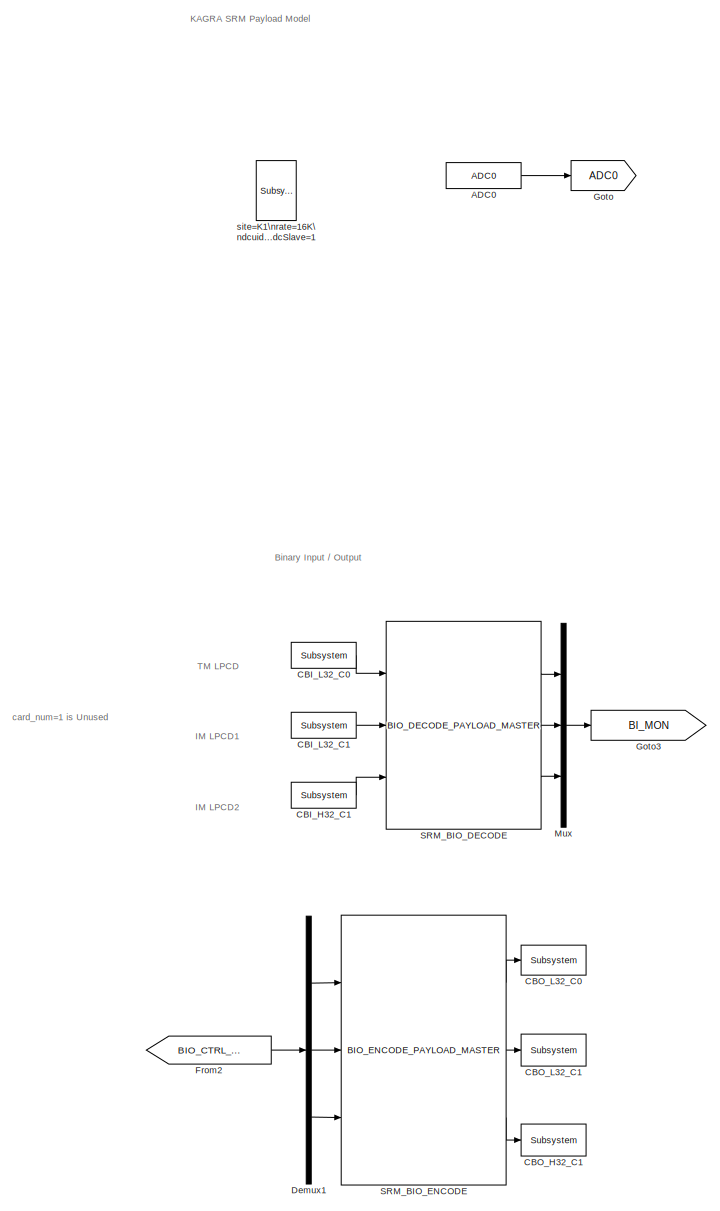
[diagram: root canvas - part 1/4, middle left region]
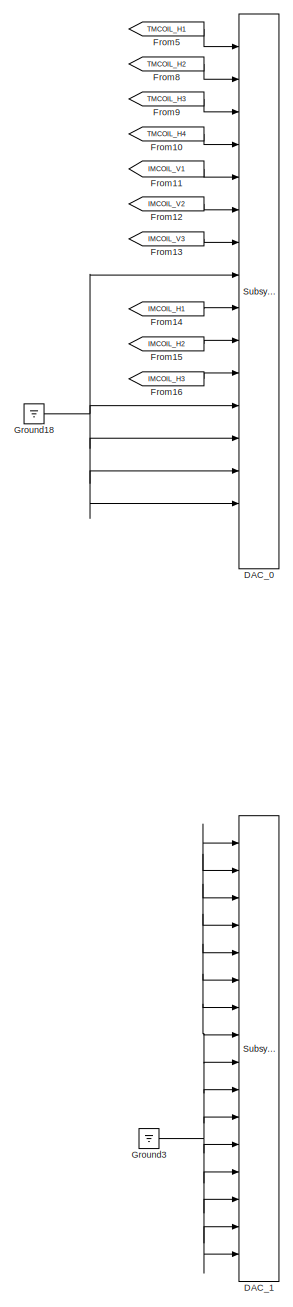
[diagram: root canvas - part 2/4, right side, full height]
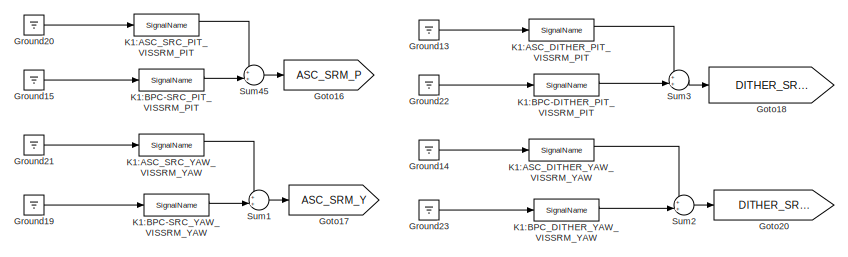
[diagram: root canvas - part 3/4, top center region]
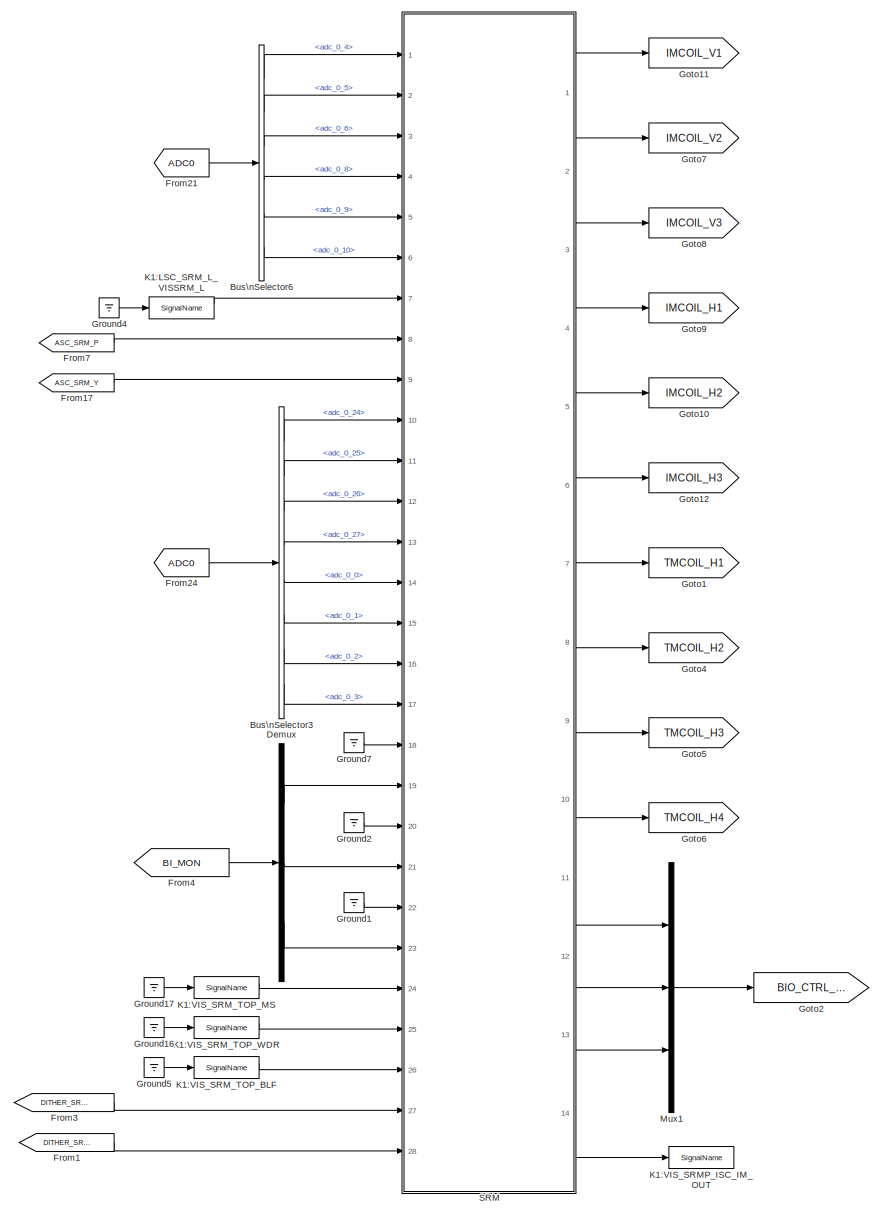
[diagram: root canvas - part 4/4, central region]
MODEL k1vissrmp
KIND model
BLOCK [Reference] ADC0  REF=cdsAdcx0/ADC0
  AttributesFormatString = %<Description>\\n%<Tag>
  Description = type-GSC_16AI64SSA\ncard_num=0
  Ports = [0, 1]
  SID = 271
  SourceBlock = cdsAdcx0/ADC0
  SourceType = SubSystem
  Tag = cdsAdc
BLOCK [BusSelector] Bus\nSelector3
  AttributesFormatString = %<Description>
  Description = ADC Selector
  OutputSignals = adc_0_24,adc_0_25,adc_0_26,adc_0_27,adc_0_0,adc_0_1,adc_0_2,adc_0_3
  Ports = [1, 8]
  SID = 275
BLOCK [BusSelector] Bus\nSelector6
  AttributesFormatString = %<Description>
  Description = ADC Selector
  OutputSignals = adc_0_4,adc_0_5,adc_0_6,adc_0_8,adc_0_9,adc_0_10
  Ports = [1, 6]
  SID = 273
BLOCK [Reference] CBI_H32_C1  REF=cdsCDI64/Subsystem
  AttributesFormatString = %<Tag>\\n%<Description>
  Description = card_num=3
  Ports = [0, 1]
  SID = 2214
  SourceBlock = cdsCDI64/Subsystem
  SourceType = SubSystem
  Tag = cdsCDI64
BLOCK [Reference] CBI_L32_C0  REF=cdsCDI64/Subsystem
  AttributesFormatString = %<Tag>\\n%<Description>
  Description = card_num=0
  Ports = [0, 1]
  SID = 2215
  SourceBlock = cdsCDI64/Subsystem
  SourceType = SubSystem
  Tag = cdsCDI64
BLOCK [Reference] CBI_L32_C1  REF=cdsCDI64/Subsystem
  AttributesFormatString = %<Tag>\\n%<Description>
  Description = card_num=2
  Ports = [0, 1]
  SID = 2216
  SourceBlock = cdsCDI64/Subsystem
  SourceType = SubSystem
  Tag = cdsCDI64
BLOCK [Reference] CBO_H32_C1  REF=cdsCDO64/Subsystem
  AttributesFormatString = %<Tag>\\n%<Description>
  Description = card_num=3
  Ports = [1]
  SID = 2217
  SourceBlock = cdsCDO64/Subsystem
  SourceType = SubSystem
  Tag = cdsCDO64
BLOCK [Reference] CBO_L32_C0  REF=cdsCDO64/Subsystem
  AttributesFormatString = %<Tag>\\n%<Description>
  Description = card_num=0
  Ports = [1]
  SID = 2218
  SourceBlock = cdsCDO64/Subsystem
  SourceType = SubSystem
  Tag = cdsCDO64
BLOCK [Reference] CBO_L32_C1  REF=cdsCDO64/Subsystem
  AttributesFormatString = %<Tag>\\n%<Description>
  Description = card_num=2
  Ports = [1]
  SID = 2219
  SourceBlock = cdsCDO64/Subsystem
  SourceType = SubSystem
  Tag = cdsCDO64
BLOCK [Reference] DAC_0  REF=dac/Subsystem  (lib defined in slx_40ef132df75b, slx_b7657ccccc5b, +4 more)
  AttributesFormatString = %<Description>
  Description = type=GSC_16AO16,\ncard_num=0
  Ports = [16]
  SID = 350
  SourceBlock = dac/Subsystem
  SourceType = SubSystem
BLOCK [Reference] DAC_1  REF=dac/Subsystem  (lib defined in slx_40ef132df75b, slx_b7657ccccc5b, +4 more)
  AttributesFormatString = %<Description>
  Description = type=GSC_16AO16,\ncard_num=1
  Ports = [16]
  SID = 536
  SourceBlock = dac/Subsystem
  SourceType = SubSystem
BLOCK [Demux] Demux
  DisplayOption = bar
  Outputs = 3
  Ports = [1, 3]
  SID = 2148
BLOCK [Demux] Demux1
  DisplayOption = bar
  Outputs = 3
  Ports = [1, 3]
  SID = 2220
BLOCK [From] From1
  GotoTag = DITHER_SRM_Y
  SID = 2282
BLOCK [From] From10
  GotoTag = TMCOIL_H4
  SID = 351
BLOCK [From] From11
  GotoTag = IMCOIL_V1
  SID = 352
BLOCK [From] From12
  GotoTag = IMCOIL_V2
  SID = 353
BLOCK [From] From13
  GotoTag = IMCOIL_V3
  SID = 354
BLOCK [From] From14
  GotoTag = IMCOIL_H1
  SID = 355
BLOCK [From] From15
  GotoTag = IMCOIL_H2
  SID = 356
BLOCK [From] From16
  GotoTag = IMCOIL_H3
  SID = 357
BLOCK [From] From17
  GotoTag = ASC_SRM_Y
  SID = 2280
BLOCK [From] From2
  GotoTag = BIO_CTRL_OUT
  SID = 2221
BLOCK [From] From21
  GotoTag = ADC0
  SID = 1851
BLOCK [From] From24
  GotoTag = ADC0
  SID = 1853
BLOCK [From] From3
  GotoTag = DITHER_SRM_P
  SID = 2283
BLOCK [From] From4
  GotoTag = BI_MON
  SID = 2149
BLOCK [From] From5
  GotoTag = TMCOIL_H1
  SID = 359
BLOCK [From] From7
  GotoTag = ASC_SRM_P
  SID = 2281
BLOCK [From] From8
  GotoTag = TMCOIL_H2
  SID = 360
BLOCK [From] From9
  GotoTag = TMCOIL_H3
  SID = 361
BLOCK [Goto] Goto
  GotoTag = ADC0
  SID = 272
BLOCK [Goto] Goto1
  GotoTag = TMCOIL_H1
  SID = 364
BLOCK [Goto] Goto10
  GotoTag = IMCOIL_H2
  SID = 368
BLOCK [Goto] Goto11
  GotoTag = IMCOIL_V1
  SID = 369
BLOCK [Goto] Goto12
  GotoTag = IMCOIL_H3
  SID = 370
BLOCK [Goto] Goto16
  GotoTag = ASC_SRM_P
  SID = 2256
BLOCK [Goto] Goto17
  GotoTag = ASC_SRM_Y
  SID = 2257
BLOCK [Goto] Goto18
  GotoTag = DITHER_SRM_P
  SID = 2258
BLOCK [Goto] Goto2
  GotoTag = BIO_CTRL_OUT
  SID = 2146
BLOCK [Goto] Goto20
  GotoTag = DITHER_SRM_Y
  SID = 2259
BLOCK [Goto] Goto3
  GotoTag = BI_MON
  SID = 2222
BLOCK [Goto] Goto4
  GotoTag = TMCOIL_H2
  SID = 365
BLOCK [Goto] Goto5
  GotoTag = TMCOIL_H3
  SID = 366
BLOCK [Goto] Goto6
  GotoTag = TMCOIL_H4
  SID = 367
BLOCK [Goto] Goto7
  GotoTag = IMCOIL_V2
  SID = 371
BLOCK [Goto] Goto8
  GotoTag = IMCOIL_V3
  SID = 372
BLOCK [Goto] Goto9
  GotoTag = IMCOIL_H1
  SID = 373
BLOCK [Ground] Ground1
  SID = 2152
BLOCK [Ground] Ground13
  SID = 2260
BLOCK [Ground] Ground14
  SID = 2261
BLOCK [Ground] Ground15
  SID = 2262
BLOCK [Ground] Ground16
  SID = 2210
BLOCK [Ground] Ground17
  SID = 2211
BLOCK [Ground] Ground18
  SID = 362
BLOCK [Ground] Ground19
  SID = 2263
BLOCK [Ground] Ground2
  SID = 2153
BLOCK [Ground] Ground20
  SID = 2266
BLOCK [Ground] Ground21
  SID = 2267
BLOCK [Ground] Ground22
  SID = 2264
BLOCK [Ground] Ground23
  SID = 2265
BLOCK [Ground] Ground3
  SID = 537
BLOCK [Ground] Ground4
  SID = 2204
BLOCK [Ground] Ground5
  SID = 2231
BLOCK [Ground] Ground7
  SID = 2151
BLOCK [Reference] K1:ASC_DITHER_PIT_VISSRM_PIT  REF=cdsIPCx/SignalName
  AttributesFormatString = %<Tag>
  Description = Inter-Process Communication via PCI Express network.
  Ports = [1, 2]
  SID = 2254
  SourceBlock = cdsIPCx/SignalName
  SourceType = SubSystem
  Tag = cdsIPCx_PCIE
BLOCK [Reference] K1:ASC_DITHER_YAW_VISSRM_YAW  REF=cdsIPCx/SignalName
  AttributesFormatString = %<Tag>
  Description = Inter-Process Communication via PCI Express network.
  Ports = [1, 2]
  SID = 2255
  SourceBlock = cdsIPCx/SignalName
  SourceType = SubSystem
  Tag = cdsIPCx_PCIE
BLOCK [Reference] K1:ASC_SRC_PIT_VISSRM_PIT  REF=cdsIPCx/SignalName
  AttributesFormatString = %<Tag>
  Description = Inter-Process Communication via PCI Express network.
  Ports = [1, 2]
  SID = 2250
  SourceBlock = cdsIPCx/SignalName
  SourceType = SubSystem
  Tag = cdsIPCx_PCIE
BLOCK [Reference] K1:ASC_SRC_YAW_VISSRM_YAW  REF=cdsIPCx/SignalName
  AttributesFormatString = %<Tag>
  Description = Inter-Process Communication via PCI Express network.
  Ports = [1, 2]
  SID = 2251
  SourceBlock = cdsIPCx/SignalName
  SourceType = SubSystem
  Tag = cdsIPCx_PCIE
BLOCK [Reference] K1:BPC-DITHER_PIT_VISSRM_PIT  REF=cdsIPCx/SignalName
  AttributesFormatString = %<Tag>
  Description = Inter-Process Communication via PCI Express network.
  Ports = [1, 2]
  SID = 2272
  SourceBlock = cdsIPCx/SignalName
  SourceType = SubSystem
  Tag = cdsIPCx_PCIE
BLOCK [Reference] K1:BPC-SRC_PIT_VISSRM_PIT  REF=cdsIPCx/SignalName
  AttributesFormatString = %<Tag>
  Description = Inter-Process Communication via PCI Express network.
  Ports = [1, 2]
  SID = 2273
  SourceBlock = cdsIPCx/SignalName
  SourceType = SubSystem
  Tag = cdsIPCx_PCIE
BLOCK [Reference] K1:BPC-SRC_YAW_VISSRM_YAW  REF=cdsIPCx/SignalName
  AttributesFormatString = %<Tag>
  Description = Inter-Process Communication via PCI Express network.
  Ports = [1, 2]
  SID = 2274
  SourceBlock = cdsIPCx/SignalName
  SourceType = SubSystem
  Tag = cdsIPCx_PCIE
BLOCK [Reference] K1:BPC_DITHER_YAW_VISSRM_YAW  REF=cdsIPCx/SignalName
  AttributesFormatString = %<Tag>
  Description = Inter-Process Communication via PCI Express network.
  Ports = [1, 2]
  SID = 2275
  SourceBlock = cdsIPCx/SignalName
  SourceType = SubSystem
  Tag = cdsIPCx_PCIE
BLOCK [Reference] K1:LSC_SRM_L_VISSRM_L  REF=cdsIPCx/SignalName
  AttributesFormatString = %<Tag>
  Description = Inter-Process Communication via PCI Express network.
  Ports = [1, 2]
  SID = 2233
  SourceBlock = cdsIPCx/SignalName
  SourceType = SubSystem
  Tag = cdsIPCx_PCIE
BLOCK [Reference] K1:VIS_SRMP_ISC_IM_OUT  REF=cdsIPCx/SignalName
  AttributesFormatString = %<Tag>
  Description = Inter-Process Communication via Shared memory.
  Ports = [1, 2]
  SID = 2284
  SourceBlock = cdsIPCx/SignalName
  SourceType = SubSystem
  Tag = cdsIPCx_SHMEM
BLOCK [Reference] K1:VIS_SRM_TOP_BLF  REF=cdsIPCx/SignalName
  AttributesFormatString = %<Tag>
  Description = Inter-Process Communication via Shared memory.
  Ports = [1, 2]
  SID = 2232
  SourceBlock = cdsIPCx/SignalName
  SourceType = SubSystem
  Tag = cdsIPCx_SHMEM
BLOCK [Reference] K1:VIS_SRM_TOP_MS  REF=cdsIPCx/SignalName
  AttributesFormatString = %<Tag>
  Description = Inter-Process Communication via Shared memory.
  Ports = [1, 2]
  SID = 2212
  SourceBlock = cdsIPCx/SignalName
  SourceType = SubSystem
  Tag = cdsIPCx_SHMEM
BLOCK [Reference] K1:VIS_SRM_TOP_WDR  REF=cdsIPCx/SignalName
  AttributesFormatString = %<Tag>
  Description = Inter-Process Communication via Shared memory.
  Ports = [1, 2]
  SID = 2213
  SourceBlock = cdsIPCx/SignalName
  SourceType = SubSystem
  Tag = cdsIPCx_SHMEM
BLOCK [Mux] Mux
  DisplayOption = bar
  Inputs = 3
  Ports = [3, 1]
  SID = 2223
BLOCK [Mux] Mux1
  DisplayOption = bar
  Inputs = 3
  Ports = [3, 1]
  SID = 2147
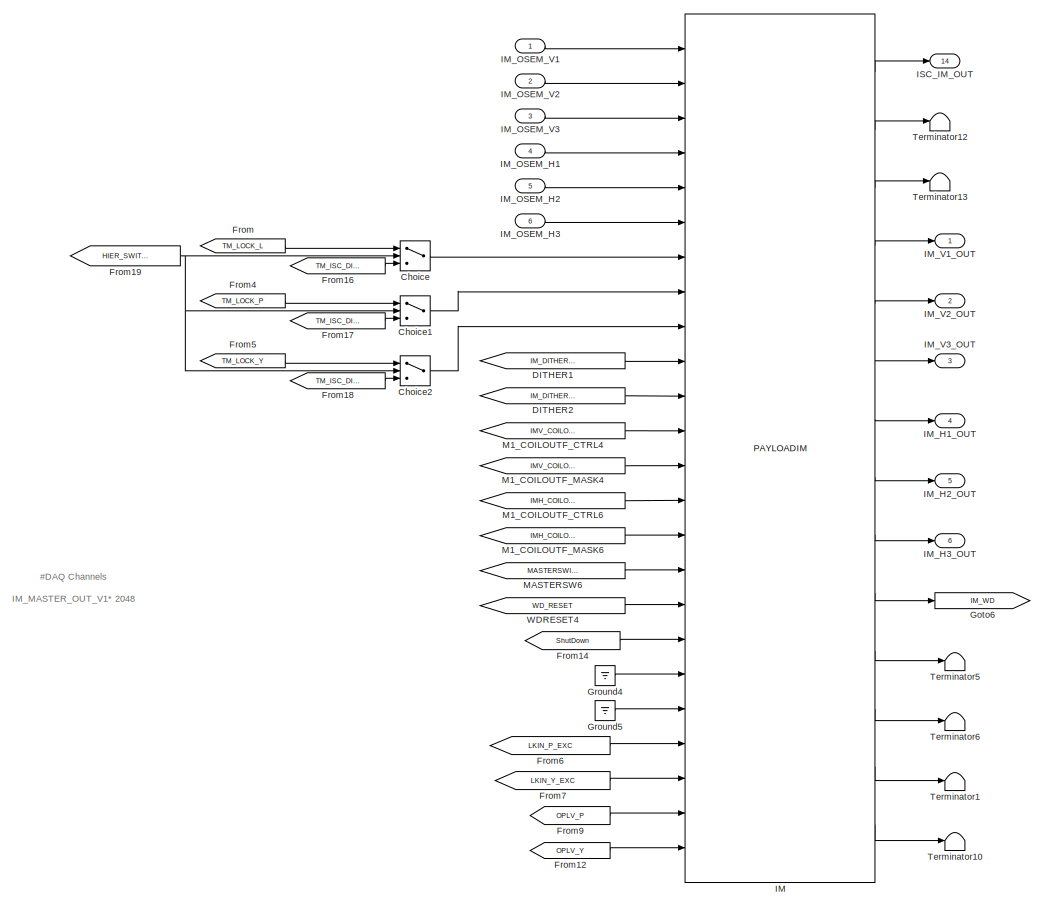
[diagram: SRM - part 1/4, top left region]
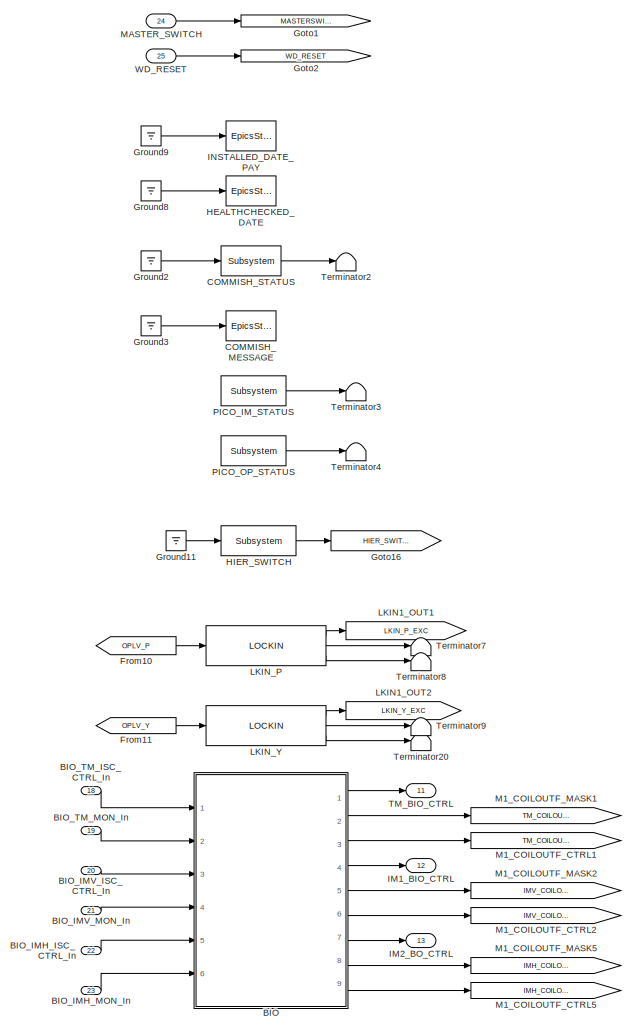
[diagram: SRM - part 2/4, middle right region]
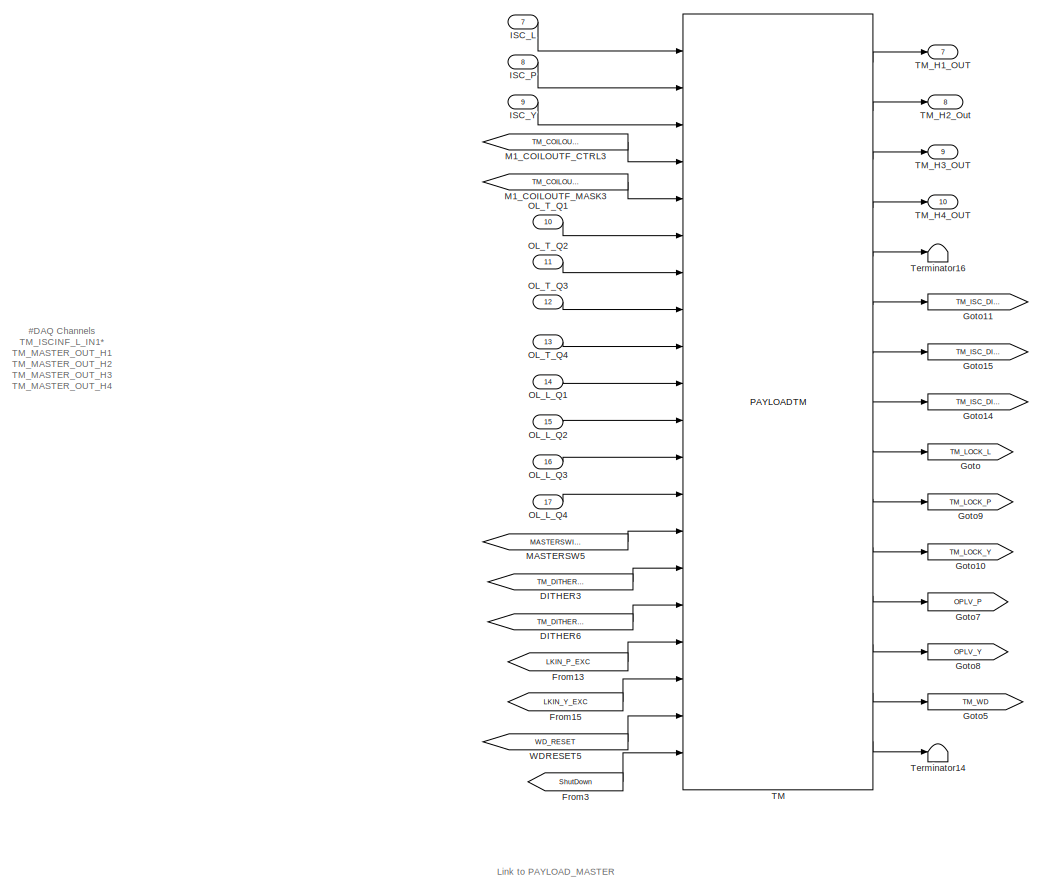
[diagram: SRM - part 3/4, bottom left region]
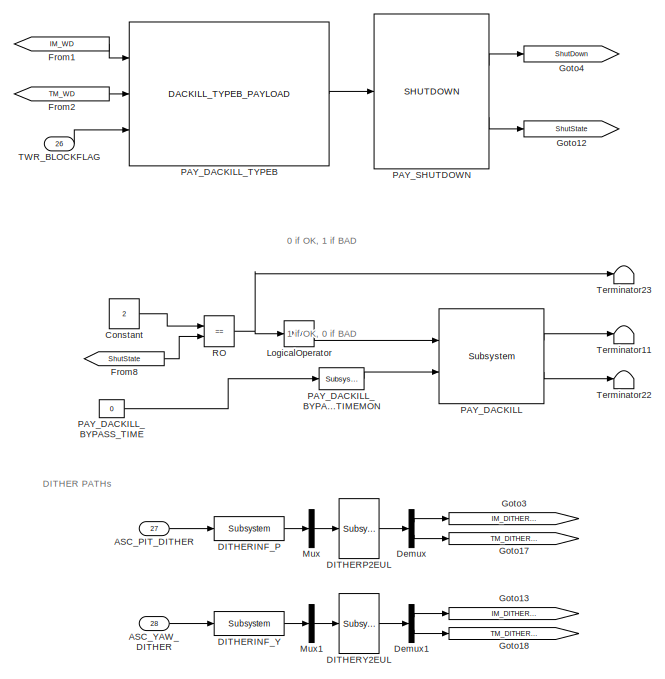
[diagram: SRM - part 4/4, bottom right region]
BLOCK [SubSystem] SRM
  AncestorBlock = TYPEB_MASTER/TYPEB_PAYLOAD_shutdown
  Ports = [28, 14]
  RequestExecContextInheritance = off
  SID = 2230
  Variant = off
BLOCK [Inport] SRM/ASC_PIT_DITHER
  IconDisplay = Port number
  Port = 27
  SID = 2230:3406
BLOCK [Inport] SRM/ASC_YAW_DITHER
  IconDisplay = Port number
  Port = 28
  SID = 2230:3407
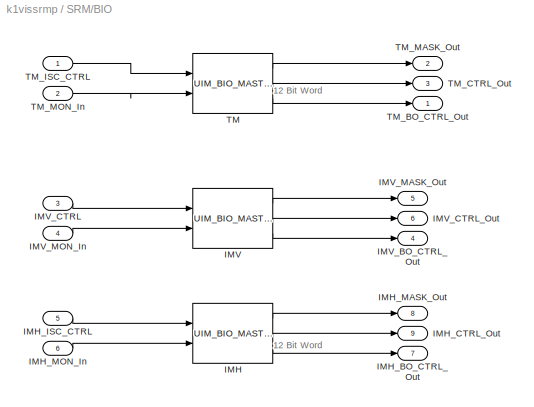
BLOCK [SubSystem] SRM/BIO
  Ports = [6, 9]
  RequestExecContextInheritance = off
  SID = 2230:3408
  Variant = off
BLOCK [Reference] SRM/BIO/IMH  REF=STATE_BIO_MASTER/UIM_BIO_MASTER
  Ports = [2, 3]
  SID = 2230:3415
  SourceBlock = STATE_BIO_MASTER/UIM_BIO_MASTER
  SourceType = SubSystem
BLOCK [Outport] SRM/BIO/IMH_BO_CTRL_Out
  IconDisplay = Port number
  Port = 7
  SID = 2230:3424
BLOCK [Outport] SRM/BIO/IMH_CTRL_Out
  IconDisplay = Port number
  Port = 9
  SID = 2230:3426
BLOCK [Inport] SRM/BIO/IMH_ISC_CTRL
  IconDisplay = Port number
  Port = 5
  SID = 2230:3413
BLOCK [Outport] SRM/BIO/IMH_MASK_Out
  IconDisplay = Port number
  Port = 8
  SID = 2230:3425
BLOCK [Inport] SRM/BIO/IMH_MON_In
  IconDisplay = Port number
  Port = 6
  SID = 2230:3414
BLOCK [Reference] SRM/BIO/IMV  REF=STATE_BIO_MASTER/UIM_BIO_MASTER
  Ports = [2, 3]
  SID = 2230:3416
  SourceBlock = STATE_BIO_MASTER/UIM_BIO_MASTER
  SourceType = SubSystem
BLOCK [Outport] SRM/BIO/IMV_BO_CTRL_Out
  IconDisplay = Port number
  Port = 4
  SID = 2230:3421
BLOCK [Inport] SRM/BIO/IMV_CTRL
  IconDisplay = Port number
  Port = 3
  SID = 2230:3411
BLOCK [Outport] SRM/BIO/IMV_CTRL_Out
  IconDisplay = Port number
  Port = 6
  SID = 2230:3423
BLOCK [Outport] SRM/BIO/IMV_MASK_Out
  IconDisplay = Port number
  Port = 5
  SID = 2230:3422
BLOCK [Inport] SRM/BIO/IMV_MON_In
  IconDisplay = Port number
  Port = 4
  SID = 2230:3412
BLOCK [Reference] SRM/BIO/TM  REF=STATE_BIO_MASTER/UIM_BIO_MASTER
  Ports = [2, 3]
  SID = 2230:3417
  SourceBlock = STATE_BIO_MASTER/UIM_BIO_MASTER
  SourceType = SubSystem
BLOCK [Outport] SRM/BIO/TM_BO_CTRL_Out
  IconDisplay = Port number
  SID = 2230:3418
BLOCK [Outport] SRM/BIO/TM_CTRL_Out
  IconDisplay = Port number
  Port = 3
  SID = 2230:3420
BLOCK [Inport] SRM/BIO/TM_ISC_CTRL
  IconDisplay = Port number
  SID = 2230:3409
BLOCK [Outport] SRM/BIO/TM_MASK_Out
  IconDisplay = Port number
  Port = 2
  SID = 2230:3419
BLOCK [Inport] SRM/BIO/TM_MON_In
  IconDisplay = Port number
  Port = 2
  SID = 2230:3410
BLOCK [Inport] SRM/BIO_IMH_ISC_CTRL_In
  IconDisplay = Port number
  Port = 22
  SID = 2230:3399
BLOCK [Inport] SRM/BIO_IMH_MON_In
  IconDisplay = Port number
  Port = 23
  SID = 2230:3400
BLOCK [Inport] SRM/BIO_IMV_ISC_CTRL_In
  IconDisplay = Port number
  Port = 20
  SID = 2230:3397
BLOCK [Inport] SRM/BIO_IMV_MON_In
  IconDisplay = Port number
  Port = 21
  SID = 2230:3398
BLOCK [Inport] SRM/BIO_TM_ISC_CTRL_In
  IconDisplay = Port number
  Port = 18
  SID = 2230:3395
BLOCK [Inport] SRM/BIO_TM_MON_In
  IconDisplay = Port number
  Port = 19
  SID = 2230:3396
BLOCK [Reference] SRM/COMMISH_MESSAGE  REF=cdsEpicsStringIn/EpicsStringIn
  AttributesFormatString = %<Tag>
  Description = cdsEpicsStringIn
  Ports = [1]
  SID = 2230:4994
  SourceBlock = cdsEpicsStringIn/EpicsStringIn
  SourceType = SubSystem
  Tag = cdsEpicsStringIn
BLOCK [Reference] SRM/COMMISH_STATUS  REF=cdsEpicsBinIn/Subsystem
  AttributesFormatString = %<Tag>
  Description = Purpose:                                                                            \nCreate an EPICS binary (0 or 1) input channel to the FE realtime controls.          \n                                                                                    \nOperation:                                                                          \nOutputs value from an EPICS ai record. Value is binary i...<+252ch>
  Ports = [1, 1]
  SID = 2230:4995
  SourceBlock = cdsEpicsBinIn/Subsystem
  SourceType = SubSystem
  Tag = cdsEpicsBinIn
BLOCK [Switch] SRM/Choice
  InputSameDT = off
  SID = 2230:3429
  SaturateOnIntegerOverflow = off
  Threshold = 0.5
BLOCK [Switch] SRM/Choice1
  InputSameDT = off
  SID = 2230:3430
  SaturateOnIntegerOverflow = off
  Threshold = 0.5
BLOCK [Switch] SRM/Choice2
  InputSameDT = off
  SID = 2230:3431
  SaturateOnIntegerOverflow = off
  Threshold = 0.5
BLOCK [Constant] SRM/Constant
  SID = 2230:3432
  Value = 2
BLOCK [From] SRM/DITHER1
  CloseFcn = tagdialog Close
  GotoTag = IM_DITHER_PIT
  SID = 2230:4163
BLOCK [From] SRM/DITHER2
  CloseFcn = tagdialog Close
  GotoTag = IM_DITHER_YAW
  SID = 2230:4164
BLOCK [From] SRM/DITHER3
  CloseFcn = tagdialog Close
  GotoTag = TM_DITHER_PIT
  SID = 2230:4165
BLOCK [From] SRM/DITHER6
  CloseFcn = tagdialog Close
  GotoTag = TM_DITHER_YAW
  SID = 2230:4168
BLOCK [Reference] SRM/DITHERINF_P  REF=cdsFilt/Subsystem
  AttributesFormatString = %<Tag>
  Description = Purpose:                                                                                                                                                                                                                                  \nStandard CDS IIR filter module.                                                                                                                                     ...<+1302ch>
  Ports = [1, 1]
  SID = 2230:5860
  SourceBlock = cdsFilt/Subsystem
  SourceType = SubSystem
  Tag = cdsFilt
BLOCK [Reference] SRM/DITHERINF_Y  REF=cdsFilt/Subsystem
  AttributesFormatString = %<Tag>
  Description = Purpose:                                                                                                                                                                                                                                  \nStandard CDS IIR filter module.                                                                                                                                     ...<+1302ch>
  Ports = [1, 1]
  SID = 2230:5861
  SourceBlock = cdsFilt/Subsystem
  SourceType = SubSystem
  Tag = cdsFilt
BLOCK [Reference] SRM/DITHERP2EUL  REF=cdsMuxMatrix/Subsystem
  AttributesFormatString = %<Tag>
  Description = Any size matrix. Inputs and outputs must be connected using Mux and Demux parts.
  Ports = [1, 1]
  SID = 2230:5864
  SourceBlock = cdsMuxMatrix/Subsystem
  SourceType = SubSystem
  Tag = cdsMuxMatrix
BLOCK [Reference] SRM/DITHERY2EUL  REF=cdsMuxMatrix/Subsystem
  AttributesFormatString = %<Tag>
  Description = Any size matrix. Inputs and outputs must be connected using Mux and Demux parts.
  Ports = [1, 1]
  SID = 2230:5867
  SourceBlock = cdsMuxMatrix/Subsystem
  SourceType = SubSystem
  Tag = cdsMuxMatrix
BLOCK [Demux] SRM/Demux
  DisplayOption = bar
  Outputs = 2
  Ports = [1, 2]
  SID = 2230:5862
BLOCK [Demux] SRM/Demux1
  DisplayOption = bar
  Outputs = 2
  Ports = [1, 2]
  SID = 2230:5865
BLOCK [From] SRM/From
  CloseFcn = tagdialog Close
  GotoTag = TM_LOCK_L
  SID = 2230:3436
BLOCK [From] SRM/From1
  CloseFcn = tagdialog Close
  GotoTag = IM_WD
  SID = 2230:3437
BLOCK [From] SRM/From10
  CloseFcn = tagdialog Close
  GotoTag = OPLV_P
  SID = 2230:5821
BLOCK [From] SRM/From11
  CloseFcn = tagdialog Close
  GotoTag = OPLV_Y
  SID = 2230:5822
BLOCK [From] SRM/From12
  CloseFcn = tagdialog Close
  GotoTag = OPLV_Y
  SID = 2230:5831
BLOCK [From] SRM/From13
  GotoTag = LKIN_P_EXC
  SID = 2230:5837
BLOCK [From] SRM/From14
  GotoTag = ShutDown
  SID = 2230:3441
BLOCK [From] SRM/From15
  GotoTag = LKIN_Y_EXC
  SID = 2230:5838
BLOCK [From] SRM/From16
  GotoTag = TM_ISC_DIST_L
  SID = 2230:5850
BLOCK [From] SRM/From17
  GotoTag = TM_ISC_DIST_P
  SID = 2230:5851
BLOCK [From] SRM/From18
  GotoTag = TM_ISC_DIST_Y
  SID = 2230:5852
BLOCK [From] SRM/From19
  GotoTag = HIER_SWITCH
  SID = 2230:5858
BLOCK [From] SRM/From2
  CloseFcn = tagdialog Close
  GotoTag = TM_WD
  SID = 2230:3442
BLOCK [From] SRM/From3
  GotoTag = ShutDown
  SID = 2230:3443
BLOCK [From] SRM/From4
  CloseFcn = tagdialog Close
  GotoTag = TM_LOCK_P
  SID = 2230:3444
BLOCK [From] SRM/From5
  CloseFcn = tagdialog Close
  GotoTag = TM_LOCK_Y
  SID = 2230:3445
BLOCK [From] SRM/From6
  GotoTag = LKIN_P_EXC
  SID = 2230:5832
BLOCK [From] SRM/From7
  GotoTag = LKIN_Y_EXC
  SID = 2230:5833
BLOCK [From] SRM/From8
  GotoTag = ShutState
  SID = 2230:3446
BLOCK [From] SRM/From9
  CloseFcn = tagdialog Close
  GotoTag = OPLV_P
  SID = 2230:5834
BLOCK [Goto] SRM/Goto
  GotoTag = TM_LOCK_L
  SID = 2230:3448
BLOCK [Goto] SRM/Goto1
  GotoTag = MASTERSWITCH
  SID = 2230:3449
BLOCK [Goto] SRM/Goto10
  GotoTag = TM_LOCK_Y
  SID = 2230:3450
BLOCK [Goto] SRM/Goto11
  GotoTag = TM_ISC_DIST_L
  SID = 2230:5847
BLOCK [Goto] SRM/Goto12
  GotoTag = ShutState
  SID = 2230:3452
BLOCK [Goto] SRM/Goto13
  GotoTag = IM_DITHER_YAW
  SID = 2230:3453
BLOCK [Goto] SRM/Goto14
  GotoTag = TM_ISC_DIST_Y
  SID = 2230:5848
BLOCK [Goto] SRM/Goto15
  GotoTag = TM_ISC_DIST_P
  SID = 2230:5849
BLOCK [Goto] SRM/Goto16
  GotoTag = HIER_SWITCH
  SID = 2230:5855
BLOCK [Goto] SRM/Goto17
  GotoTag = TM_DITHER_PIT
  SID = 2230:5873
BLOCK [Goto] SRM/Goto18
  GotoTag = TM_DITHER_YAW
  SID = 2230:5874
BLOCK [Goto] SRM/Goto2
  GotoTag = WD_RESET
  SID = 2230:3459
BLOCK [Goto] SRM/Goto3
  GotoTag = IM_DITHER_PIT
  SID = 2230:3460
BLOCK [Goto] SRM/Goto4
  GotoTag = ShutDown
  SID = 2230:3461
BLOCK [Goto] SRM/Goto5
  GotoTag = TM_WD
  SID = 2230:3462
BLOCK [Goto] SRM/Goto6
  GotoTag = IM_WD
  SID = 2230:3463
BLOCK [Goto] SRM/Goto7
  GotoTag = OPLV_P
  SID = 2230:5835
BLOCK [Goto] SRM/Goto8
  GotoTag = OPLV_Y
  SID = 2230:5836
BLOCK [Goto] SRM/Goto9
  GotoTag = TM_LOCK_P
  SID = 2230:3466
BLOCK [Ground] SRM/Ground11
  SID = 2230:5856
BLOCK [Ground] SRM/Ground2
  SID = 2230:4996
BLOCK [Ground] SRM/Ground3
  SID = 2230:4997
BLOCK [Ground] SRM/Ground4
  SID = 2230:5839
BLOCK [Ground] SRM/Ground5
  SID = 2230:5840
BLOCK [Ground] SRM/Ground8
  SID = 2230:4998
BLOCK [Ground] SRM/Ground9
  SID = 2230:4999
BLOCK [Reference] SRM/HEALTHCHECKED_DATE  REF=cdsEpicsStringIn/EpicsStringIn
  AttributesFormatString = %<Tag>
  Description = cdsEpicsStringIn
  Ports = [1]
  SID = 2230:5000
  SourceBlock = cdsEpicsStringIn/EpicsStringIn
  SourceType = SubSystem
  Tag = cdsEpicsStringIn
BLOCK [Reference] SRM/HIER_SWITCH  REF=cdsEpicsBinIn/Subsystem
  AttributesFormatString = %<Tag>
  Description = Purpose:                                                                            \nCreate an EPICS binary (0 or 1) input channel to the FE realtime controls.          \n                                                                                    \nOperation:                                                                          \nOutputs value from an EPICS ai record. Value is binary i...<+252ch>
  Ports = [1, 1]
  SID = 2230:5857
  SourceBlock = cdsEpicsBinIn/Subsystem
  SourceType = SubSystem
  Tag = cdsEpicsBinIn
BLOCK [Reference] SRM/IM  REF=PAYLOAD_MASTER/PAYLOADIM
  Description = SIXOSEMSTAGE_FACE_MASTER
  Ports = [24, 14]
  SID = 2230:5818
  SourceBlock = PAYLOAD_MASTER/PAYLOADIM
  SourceType = SubSystem
BLOCK [Outport] SRM/IM1_BIO_CTRL
  IconDisplay = Port number
  Port = 12
  SID = 2230:4180
BLOCK [Outport] SRM/IM2_BO_CTRL
  IconDisplay = Port number
  Port = 13
  SID = 2230:4181
BLOCK [Outport] SRM/IM_H1_OUT
  IconDisplay = Port number
  Port = 4
  SID = 2230:4172
BLOCK [Outport] SRM/IM_H2_OUT
  IconDisplay = Port number
  Port = 5
  SID = 2230:4173
BLOCK [Outport] SRM/IM_H3_OUT
  IconDisplay = Port number
  Port = 6
  SID = 2230:4174
BLOCK [Inport] SRM/IM_OSEM_H1
  IconDisplay = Port number
  Port = 4
  SID = 2230:3381
BLOCK [Inport] SRM/IM_OSEM_H2
  IconDisplay = Port number
  Port = 5
  SID = 2230:3382
BLOCK [Inport] SRM/IM_OSEM_H3
  IconDisplay = Port number
  Port = 6
  SID = 2230:3383
BLOCK [Inport] SRM/IM_OSEM_V1
  IconDisplay = Port number
  SID = 2230:3378
BLOCK [Inport] SRM/IM_OSEM_V2
  IconDisplay = Port number
  Port = 2
  SID = 2230:3379
BLOCK [Inport] SRM/IM_OSEM_V3
  IconDisplay = Port number
  Port = 3
  SID = 2230:3380
BLOCK [Outport] SRM/IM_V1_OUT
  IconDisplay = Port number
  SID = 2230:4169
BLOCK [Outport] SRM/IM_V2_OUT
  IconDisplay = Port number
  Port = 2
  SID = 2230:4170
BLOCK [Outport] SRM/IM_V3_OUT
  IconDisplay = Port number
  Port = 3
  SID = 2230:4171
BLOCK [Reference] SRM/INSTALLED_DATE_PAY  REF=cdsEpicsStringIn/EpicsStringIn
  AttributesFormatString = %<Tag>
  Description = cdsEpicsStringIn
  Ports = [1]
  SID = 2230:5001
  SourceBlock = cdsEpicsStringIn/EpicsStringIn
  SourceType = SubSystem
  Tag = cdsEpicsStringIn
BLOCK [Outport] SRM/ISC_IM_OUT
  IconDisplay = Port number
  Port = 14
  SID = 2230:4183
BLOCK [Inport] SRM/ISC_L
  IconDisplay = Port number
  Port = 7
  SID = 2230:3384
BLOCK [Inport] SRM/ISC_P
  IconDisplay = Port number
  Port = 8
  SID = 2230:3385
BLOCK [Inport] SRM/ISC_Y
  IconDisplay = Port number
  Port = 9
  SID = 2230:3386
BLOCK [Goto] SRM/LKIN1_OUT1
  GotoTag = LKIN_P_EXC
  SID = 2230:5823
BLOCK [Goto] SRM/LKIN1_OUT2
  GotoTag = LKIN_Y_EXC
  SID = 2230:5824
BLOCK [Reference] SRM/LKIN_P  REF=lockin/LOCKIN
  AttributesFormatString = %<Tag>
  Description = ADL=LOCKIN.adl
  Ports = [1, 3]
  SID = 2230:5825
  SourceBlock = lockin/LOCKIN
  SourceType = SubSystem
BLOCK [Reference] SRM/LKIN_Y  REF=lockin/LOCKIN
  AttributesFormatString = %<Tag>
  Description = ADL=LOCKIN.adl
  Ports = [1, 3]
  SID = 2230:5826
  SourceBlock = lockin/LOCKIN
  SourceType = SubSystem
BLOCK [Logic] SRM/LogicalOperator
  AllPortsSameDT = off
  Operator = NOT
  OutDataTypeStr = boolean
  Ports = [1, 1]
  SID = 2230:3471
BLOCK [Goto] SRM/M1_COILOUTF_CTRL1
  GotoTag = TM_COILOUTF_CTRL
  SID = 2230:3472
BLOCK [Goto] SRM/M1_COILOUTF_CTRL2
  GotoTag = IMV_COILOUTF_CTRL
  SID = 2230:3473
BLOCK [From] SRM/M1_COILOUTF_CTRL3
  CloseFcn = tagdialog Close
  GotoTag = TM_COILOUTF_CTRL
  SID = 2230:3474
BLOCK [From] SRM/M1_COILOUTF_CTRL4
  CloseFcn = tagdialog Close
  GotoTag = IMV_COILOUTF_CTRL
  SID = 2230:3475
BLOCK [Goto] SRM/M1_COILOUTF_CTRL5
  GotoTag = IMH_COILOUTF_CTRL
  SID = 2230:3476
BLOCK [From] SRM/M1_COILOUTF_CTRL6
  CloseFcn = tagdialog Close
  GotoTag = IMH_COILOUTF_CTRL
  SID = 2230:3477
BLOCK [Goto] SRM/M1_COILOUTF_MASK1
  GotoTag = TM_COILOUTF_MASK
  SID = 2230:3478
BLOCK [Goto] SRM/M1_COILOUTF_MASK2
  GotoTag = IMV_COILOUTF_MASK
  SID = 2230:3479
BLOCK [From] SRM/M1_COILOUTF_MASK3
  CloseFcn = tagdialog Close
  GotoTag = TM_COILOUTF_MASK
  SID = 2230:3480
BLOCK [From] SRM/M1_COILOUTF_MASK4
  CloseFcn = tagdialog Close
  GotoTag = IMV_COILOUTF_MASK
  SID = 2230:3481
BLOCK [Goto] SRM/M1_COILOUTF_MASK5
  GotoTag = IMH_COILOUTF_MASK
  SID = 2230:3482
BLOCK [From] SRM/M1_COILOUTF_MASK6
  CloseFcn = tagdialog Close
  GotoTag = IMH_COILOUTF_MASK
  SID = 2230:3483
BLOCK [From] SRM/MASTERSW5
  CloseFcn = tagdialog Close
  GotoTag = MASTERSWITCH
  SID = 2230:3484
BLOCK [From] SRM/MASTERSW6
  CloseFcn = tagdialog Close
  GotoTag = MASTERSWITCH
  SID = 2230:3485
BLOCK [Inport] SRM/MASTER_SWITCH
  IconDisplay = Port number
  Port = 24
  SID = 2230:3401
BLOCK [Mux] SRM/Mux
  DisplayOption = bar
  Inputs = 1
  Ports = [1, 1]
  SID = 2230:5863
BLOCK [Mux] SRM/Mux1
  DisplayOption = bar
  Inputs = 1
  Ports = [1, 1]
  SID = 2230:5866
BLOCK [Inport] SRM/OL_L_Q1
  IconDisplay = Port number
  Port = 14
  SID = 2230:3391
BLOCK [Inport] SRM/OL_L_Q2
  IconDisplay = Port number
  Port = 15
  SID = 2230:3392
BLOCK [Inport] SRM/OL_L_Q3
  IconDisplay = Port number
  Port = 16
  SID = 2230:3393
BLOCK [Inport] SRM/OL_L_Q4
  IconDisplay = Port number
  Port = 17
  SID = 2230:3394
BLOCK [Inport] SRM/OL_T_Q1
  IconDisplay = Port number
  Port = 10
  SID = 2230:3387
BLOCK [Inport] SRM/OL_T_Q2
  IconDisplay = Port number
  Port = 11
  SID = 2230:3388
BLOCK [Inport] SRM/OL_T_Q3
  IconDisplay = Port number
  Port = 12
  SID = 2230:3389
BLOCK [Inport] SRM/OL_T_Q4
  IconDisplay = Port number
  Port = 13
  SID = 2230:3390
BLOCK [Reference] SRM/PAY_DACKILL  REF=cdsDacKill/Subsystem
  AttributesFormatString = %<Description>
  Description = cdsDacKill
  Ports = [2, 2]
  SID = 2230:4146
  SourceBlock = cdsDacKill/Subsystem
  SourceType = SubSystem
BLOCK [Constant] SRM/PAY_DACKILL_BYPASS_TIME
  SID = 2230:4147
  Value = 0
BLOCK [Reference] SRM/PAY_DACKILL_BYPASS_TIMEMON  REF=cdsEpicsOut/Subsystem
  AttributesFormatString = %<Tag>
  Description = Purpose:                                          \nOutput a FE signal to an EPICS channel.           \n                                                  \nOperation:                                        \nTakes input value and passes it to EPICS record.  \n                                                  \nUsage:                                            \nName the part with the desired EPICS...<+14ch>
  Ports = [1, 1]
  SID = 2230:4148
  SourceBlock = cdsEpicsOut/Subsystem
  SourceType = SubSystem
  Tag = cdsEpicsOutput
BLOCK [Reference] SRM/PAY_DACKILL_TYPEB  REF=VIS_LIB/DACKILL_TYPEB_PAYLOAD
  Ports = [3, 1]
  SID = 2230:4149
  SourceBlock = VIS_LIB/DACKILL_TYPEB_PAYLOAD
  SourceType = SubSystem
BLOCK [Reference] SRM/PAY_SHUTDOWN  REF=SHUTDOWN/SHUTDOWN
  Ports = [1, 2]
  SID = 2230:4150
  SourceBlock = SHUTDOWN/SHUTDOWN
  SourceType = SubSystem
BLOCK [Reference] SRM/PICO_IM_STATUS  REF=cdsEpicsIn/Subsystem
  AttributesFormatString = %<Tag>
  Description = Purpose:                                                                              \nCreate an EPICS input channel connection to the FE realtime controls.                 \n                                                                                      \nOperation:                                                                            \nOutputs value from an EPICS ai record. Value is ...<+266ch>
  Ports = [0, 1]
  SID = 2230:4990
  SourceBlock = cdsEpicsIn/Subsystem
  SourceType = SubSystem
  Tag = cdsEpicsIn
BLOCK [Reference] SRM/PICO_OP_STATUS  REF=cdsEpicsIn/Subsystem
  AttributesFormatString = %<Tag>
  Description = Purpose:                                                                              \nCreate an EPICS input channel connection to the FE realtime controls.                 \n                                                                                      \nOperation:                                                                            \nOutputs value from an EPICS ai record. Value is ...<+266ch>
  Ports = [0, 1]
  SID = 2230:4991
  SourceBlock = cdsEpicsIn/Subsystem
  SourceType = SubSystem
  Tag = cdsEpicsIn
BLOCK [RelationalOperator] SRM/RO
  InputSameDT = off
  Operator = ==
  OutDataTypeStr = boolean
  Ports = [2, 1]
  SID = 2230:4151
BLOCK [Reference] SRM/TM  REF=PAYLOAD_MASTER/PAYLOADTM
  Ports = [20, 15]
  SID = 2230:5819
  SourceBlock = PAYLOAD_MASTER/PAYLOADTM
  SourceType = SubSystem
BLOCK [Outport] SRM/TM_BIO_CTRL
  IconDisplay = Port number
  Port = 11
  SID = 2230:4179
BLOCK [Outport] SRM/TM_H1_OUT
  IconDisplay = Port number
  Port = 7
  SID = 2230:4175
BLOCK [Outport] SRM/TM_H2_Out
  IconDisplay = Port number
  Port = 8
  SID = 2230:4176
BLOCK [Outport] SRM/TM_H3_OUT
  IconDisplay = Port number
  Port = 9
  SID = 2230:4177
BLOCK [Outport] SRM/TM_H4_OUT
  IconDisplay = Port number
  Port = 10
  SID = 2230:4178
BLOCK [Inport] SRM/TWR_BLOCKFLAG
  IconDisplay = Port number
  Port = 26
  SID = 2230:3405
BLOCK [Terminator] SRM/Terminator1
  SID = 2230:5820
BLOCK [Terminator] SRM/Terminator10
  SID = 2230:5876
BLOCK [Terminator] SRM/Terminator11
  SID = 2230:4153
BLOCK [Terminator] SRM/Terminator12
  SID = 2230:4154
BLOCK [Terminator] SRM/Terminator13
  SID = 2230:4155
BLOCK [Terminator] SRM/Terminator14
  SID = 2230:5877
BLOCK [Terminator] SRM/Terminator16
  SID = 2230:4157
BLOCK [Terminator] SRM/Terminator2
  SID = 2230:5002
BLOCK [Terminator] SRM/Terminator20
  SID = 2230:5827
BLOCK [Terminator] SRM/Terminator22
  SID = 2230:4159
BLOCK [Terminator] SRM/Terminator23
  SID = 2230:4160
BLOCK [Terminator] SRM/Terminator3
  SID = 2230:4992
BLOCK [Terminator] SRM/Terminator4
  SID = 2230:4993
BLOCK [Terminator] SRM/Terminator5
  SID = 2230:4161
BLOCK [Terminator] SRM/Terminator6
  SID = 2230:4162
BLOCK [Terminator] SRM/Terminator7
  SID = 2230:5828
BLOCK [Terminator] SRM/Terminator8
  SID = 2230:5829
BLOCK [Terminator] SRM/Terminator9
  SID = 2230:5830
BLOCK [From] SRM/WDRESET4
  CloseFcn = tagdialog Close
  GotoTag = WD_RESET
  SID = 2230:4166
BLOCK [From] SRM/WDRESET5
  CloseFcn = tagdialog Close
  GotoTag = WD_RESET
  SID = 2230:4167
BLOCK [Inport] SRM/WD_RESET
  IconDisplay = Port number
  Port = 25
  SID = 2230:3402
BLOCK [Reference] SRM_BIO_DECODE  REF=TYPEB_MASTER/BIO_DECODE_PAYLOAD_MASTER
  Ports = [3, 3]
  SID = 2224
  SourceBlock = TYPEB_MASTER/BIO_DECODE_PAYLOAD_MASTER
  SourceType = SubSystem
BLOCK [Reference] SRM_BIO_ENCODE  REF=TYPEB_MASTER/BIO_ENCODE_PAYLOAD_MASTER
  Ports = [3, 3]
  SID = 2225
  SourceBlock = TYPEB_MASTER/BIO_ENCODE_PAYLOAD_MASTER
  SourceType = SubSystem
BLOCK [Sum] Sum1
  IconShape = round
  InputSameDT = off
  Inputs = ++|
  OutDataTypeStr = Inherit: Inherit via internal rule
  Ports = [2, 1]
  SID = 2276
  SaturateOnIntegerOverflow = off
BLOCK [Sum] Sum2
  IconShape = round
  InputSameDT = off
  Inputs = ++|
  OutDataTypeStr = Inherit: Inherit via internal rule
  Ports = [2, 1]
  SID = 2277
  SaturateOnIntegerOverflow = off
BLOCK [Sum] Sum3
  IconShape = round
  InputSameDT = off
  Inputs = ++|
  OutDataTypeStr = Inherit: Inherit via internal rule
  Ports = [2, 1]
  SID = 2278
  SaturateOnIntegerOverflow = off
BLOCK [Sum] Sum45
  IconShape = round
  InputSameDT = off
  Inputs = ++|
  OutDataTypeStr = Inherit: Inherit via internal rule
  Ports = [2, 1]
  SID = 2279
  SaturateOnIntegerOverflow = off
BLOCK [Reference] site=K1\nrate=16K\ndcuid=76\nhost=k1srm\nspecific_cpu=3\nadcSlave=1  REF=cdsParameters/Subsystem
  AttributesFormatString = %<Tag>
  Description = Purpose:                                                                                                                                                                                                                                \nProvide system parameters to the FE code generator to properly configure the generated EPICS names, rep rate of the FE controller, and the Data Acquisition node ID fo...<+2934ch>
  Ports = []
  SID = 422
  SourceBlock = cdsParameters/Subsystem
  SourceType = SubSystem
  Tag = cdsParameters
ANNOTATION (root): \n \n TM LPCD
ANNOTATION (root): \n \n card_num=1 is Unused
ANNOTATION (root): \n \n IM LPCD1
ANNOTATION (root): \n \n IM LPCD2
ANNOTATION (root): \n \n KAGRA SRM Payload Model
ANNOTATION (root): Binary Input / Output
ANNOTATION SRM: #DAQ Channels\nTM_ISCINF_L_IN1*\nTM_MASTER_OUT_H1\nTM_MASTER_OUT_H2\nTM_MASTER_OUT_H3\nTM_MASTER_OUT_H4\n\nTM_DRIVEALIGN_L_OUT* 4096\n\nTM_ISCINF_P_IN1* 2048\nTM_ISCINF_Y_IN1* 2048\n\nTM_OPLEV_TILT_SEG1_OUT* 256\nTM_OPLEV_TILT_SEG2_OUT* 256\nTM_OPLEV_TILT_SEG3_OUT* 256\nTM_OPLEV_TILT_SEG4_OUT* 256\nTM_OPLEV_LEN_SEG1_OUT* 256\nTM_OPLEV_LEN_SEG2_OUT* 256\nTM_OPLEV_LEN_SEG3_OUT* 256\nTM_OPLEV_LEN_SEG...<+177ch>
ANNOTATION SRM: 0 if OK, 1 if BAD
ANNOTATION SRM: 1 if OK, 0 if BAD
ANNOTATION SRM: \n \n #DAQ Channels \n IM_MASTER_OUT_V1* 2048 \n IM_MASTER_OUT_V2* 2048 \n IM_MASTER_OUT_V3* 2048 \n IM_MASTER_OUT_H1* 2048 \n IM_MASTER_OUT_H2* 2048 \n IM_MASTER_OUT_H3* 2048 \n IM_DRIVEALIGN_L_OUT* 2048 \n IM_DRIVEALIGN_P_OUT* 2048 \n IM_DRIVEALIGN_Y_OUT* 2048 \n IM_CAL_LINE_OUT* 512 \n IM_OLDAMP_P_OUT* 256 \n IM_OLDAMP_Y_OUT* 256 \n IM_OSEMINF_V1_OUT* 256 \n IM_OSEMINF_V2_OUT* 256 \n IM_OSEMINF...<+90ch>
ANNOTATION SRM: \n \n DITHER PATHs
ANNOTATION SRM: \n \n Link to PAYLOAD_MASTER
ANNOTATION SRM/BIO: 12 Bit Word
LINE ADC0:1 -> Goto:1
LINE Bus\nSelector3:1 -> SRM:10
LINE Bus\nSelector3:2 -> SRM:11
LINE Bus\nSelector3:3 -> SRM:12
LINE Bus\nSelector3:4 -> SRM:13
LINE Bus\nSelector3:5 -> SRM:14
LINE Bus\nSelector3:6 -> SRM:15
LINE Bus\nSelector3:7 -> SRM:16
LINE Bus\nSelector3:8 -> SRM:17
LINE Bus\nSelector6:1 -> SRM:1
LINE Bus\nSelector6:2 -> SRM:2
LINE Bus\nSelector6:3 -> SRM:3
LINE Bus\nSelector6:4 -> SRM:4
LINE Bus\nSelector6:5 -> SRM:5
LINE Bus\nSelector6:6 -> SRM:6
LINE CBI_H32_C1:1 -> SRM_BIO_DECODE:3
LINE CBI_L32_C0:1 -> SRM_BIO_DECODE:1
LINE CBI_L32_C1:1 -> SRM_BIO_DECODE:2
LINE Demux1:1 -> SRM_BIO_ENCODE:1
LINE Demux1:2 -> SRM_BIO_ENCODE:2
LINE Demux1:3 -> SRM_BIO_ENCODE:3
LINE Demux:1 -> SRM:19
LINE Demux:2 -> SRM:21
LINE Demux:3 -> SRM:23
LINE From10:1 -> DAC_0:4
LINE From11:1 -> DAC_0:5
LINE From12:1 -> DAC_0:6
LINE From13:1 -> DAC_0:7
LINE From14:1 -> DAC_0:9
LINE From15:1 -> DAC_0:10
LINE From16:1 -> DAC_0:11
LINE From17:1 -> SRM:9
LINE From1:1 -> SRM:28
LINE From21:1 -> Bus\nSelector6:1
LINE From24:1 -> Bus\nSelector3:1
LINE From2:1 -> Demux1:1
LINE From3:1 -> SRM:27
LINE From4:1 -> Demux:1
LINE From5:1 -> DAC_0:1
LINE From7:1 -> SRM:8
LINE From8:1 -> DAC_0:2
LINE From9:1 -> DAC_0:3
LINE Ground13:1 -> K1:ASC_DITHER_PIT_VISSRM_PIT:1
LINE Ground14:1 -> K1:ASC_DITHER_YAW_VISSRM_YAW:1
LINE Ground15:1 -> K1:BPC-SRC_PIT_VISSRM_PIT:1
LINE Ground16:1 -> K1:VIS_SRM_TOP_WDR:1
LINE Ground17:1 -> K1:VIS_SRM_TOP_MS:1
NET Ground18:1 -> DAC_0:12, DAC_0:13, DAC_0:14, DAC_0:15, DAC_0:8
LINE Ground19:1 -> K1:BPC-SRC_YAW_VISSRM_YAW:1
LINE Ground1:1 -> SRM:22
LINE Ground20:1 -> K1:ASC_SRC_PIT_VISSRM_PIT:1
LINE Ground21:1 -> K1:ASC_SRC_YAW_VISSRM_YAW:1
LINE Ground22:1 -> K1:BPC-DITHER_PIT_VISSRM_PIT:1
LINE Ground23:1 -> K1:BPC_DITHER_YAW_VISSRM_YAW:1
LINE Ground2:1 -> SRM:20
NET Ground3:1 -> DAC_1:1, DAC_1:10, DAC_1:11, DAC_1:12, DAC_1:13, DAC_1:14, DAC_1:15, DAC_1:16, DAC_1:2, DAC_1:3, DAC_1:4, DAC_1:5, DAC_1:6, DAC_1:7, DAC_1:8, DAC_1:9
LINE Ground4:1 -> K1:LSC_SRM_L_VISSRM_L:1
LINE Ground5:1 -> K1:VIS_SRM_TOP_BLF:1
LINE Ground7:1 -> SRM:18
LINE K1:ASC_DITHER_PIT_VISSRM_PIT:1 -> Sum3:1
LINE K1:ASC_DITHER_YAW_VISSRM_YAW:1 -> Sum2:1
LINE K1:ASC_SRC_PIT_VISSRM_PIT:1 -> Sum45:1
LINE K1:ASC_SRC_YAW_VISSRM_YAW:1 -> Sum1:1
LINE K1:BPC-DITHER_PIT_VISSRM_PIT:1 -> Sum3:2
LINE K1:BPC-SRC_PIT_VISSRM_PIT:1 -> Sum45:2
LINE K1:BPC-SRC_YAW_VISSRM_YAW:1 -> Sum1:2
LINE K1:BPC_DITHER_YAW_VISSRM_YAW:1 -> Sum2:2
LINE K1:LSC_SRM_L_VISSRM_L:1 -> SRM:7
LINE K1:VIS_SRM_TOP_BLF:1 -> SRM:26
LINE K1:VIS_SRM_TOP_MS:1 -> SRM:24
LINE K1:VIS_SRM_TOP_WDR:1 -> SRM:25
LINE Mux1:1 -> Goto2:1
LINE Mux:1 -> Goto3:1
LINE SRM/ASC_PIT_DITHER:1 -> SRM/DITHERINF_P:1
LINE SRM/ASC_YAW_DITHER:1 -> SRM/DITHERINF_Y:1
LINE SRM/BIO/IMH:1 -> SRM/BIO/IMH_MASK_Out:1
LINE SRM/BIO/IMH:2 -> SRM/BIO/IMH_CTRL_Out:1
LINE SRM/BIO/IMH:3 -> SRM/BIO/IMH_BO_CTRL_Out:1
LINE SRM/BIO/IMH_ISC_CTRL:1 -> SRM/BIO/IMH:1
LINE SRM/BIO/IMH_MON_In:1 -> SRM/BIO/IMH:2
LINE SRM/BIO/IMV:1 -> SRM/BIO/IMV_MASK_Out:1
LINE SRM/BIO/IMV:2 -> SRM/BIO/IMV_CTRL_Out:1
LINE SRM/BIO/IMV:3 -> SRM/BIO/IMV_BO_CTRL_Out:1
LINE SRM/BIO/IMV_CTRL:1 -> SRM/BIO/IMV:1
LINE SRM/BIO/IMV_MON_In:1 -> SRM/BIO/IMV:2
LINE SRM/BIO/TM:1 -> SRM/BIO/TM_MASK_Out:1
LINE SRM/BIO/TM:2 -> SRM/BIO/TM_CTRL_Out:1
LINE SRM/BIO/TM:3 -> SRM/BIO/TM_BO_CTRL_Out:1
LINE SRM/BIO/TM_ISC_CTRL:1 -> SRM/BIO/TM:1
LINE SRM/BIO/TM_MON_In:1 -> SRM/BIO/TM:2
LINE SRM/BIO:1 -> SRM/TM_BIO_CTRL:1
LINE SRM/BIO:2 -> SRM/M1_COILOUTF_MASK1:1
LINE SRM/BIO:3 -> SRM/M1_COILOUTF_CTRL1:1
LINE SRM/BIO:4 -> SRM/IM1_BIO_CTRL:1
LINE SRM/BIO:5 -> SRM/M1_COILOUTF_MASK2:1
LINE SRM/BIO:6 -> SRM/M1_COILOUTF_CTRL2:1
LINE SRM/BIO:7 -> SRM/IM2_BO_CTRL:1
LINE SRM/BIO:8 -> SRM/M1_COILOUTF_MASK5:1
LINE SRM/BIO:9 -> SRM/M1_COILOUTF_CTRL5:1
LINE SRM/BIO_IMH_ISC_CTRL_In:1 -> SRM/BIO:5
LINE SRM/BIO_IMH_MON_In:1 -> SRM/BIO:6
LINE SRM/BIO_IMV_ISC_CTRL_In:1 -> SRM/BIO:3
LINE SRM/BIO_IMV_MON_In:1 -> SRM/BIO:4
LINE SRM/BIO_TM_ISC_CTRL_In:1 -> SRM/BIO:1
LINE SRM/BIO_TM_MON_In:1 -> SRM/BIO:2
LINE SRM/COMMISH_STATUS:1 -> SRM/Terminator2:1
LINE SRM/Choice1:1 -> SRM/IM:8
LINE SRM/Choice2:1 -> SRM/IM:9
LINE SRM/Choice:1 -> SRM/IM:7
LINE SRM/Constant:1 -> SRM/RO:1
LINE SRM/DITHER1:1 -> SRM/IM:10
LINE SRM/DITHER2:1 -> SRM/IM:11
LINE SRM/DITHER3:1 -> SRM/TM:15
LINE SRM/DITHER6:1 -> SRM/TM:16
LINE SRM/DITHERINF_P:1 -> SRM/Mux:1
LINE SRM/DITHERINF_Y:1 -> SRM/Mux1:1
LINE SRM/DITHERP2EUL:1 -> SRM/Demux:1
LINE SRM/DITHERY2EUL:1 -> SRM/Demux1:1
LINE SRM/Demux1:1 -> SRM/Goto13:1
LINE SRM/Demux1:2 -> SRM/Goto18:1
LINE SRM/Demux:1 -> SRM/Goto3:1
LINE SRM/Demux:2 -> SRM/Goto17:1
LINE SRM/From10:1 -> SRM/LKIN_P:1
LINE SRM/From11:1 -> SRM/LKIN_Y:1
LINE SRM/From12:1 -> SRM/IM:24
LINE SRM/From13:1 -> SRM/TM:17
LINE SRM/From14:1 -> SRM/IM:18
LINE SRM/From15:1 -> SRM/TM:18
LINE SRM/From16:1 -> SRM/Choice:3
LINE SRM/From17:1 -> SRM/Choice1:3
LINE SRM/From18:1 -> SRM/Choice2:3
NET SRM/From19:1 -> SRM/Choice1:2, SRM/Choice2:2, SRM/Choice:2
LINE SRM/From1:1 -> SRM/PAY_DACKILL_TYPEB:1
LINE SRM/From2:1 -> SRM/PAY_DACKILL_TYPEB:2
LINE SRM/From3:1 -> SRM/TM:20
LINE SRM/From4:1 -> SRM/Choice1:1
LINE SRM/From5:1 -> SRM/Choice2:1
LINE SRM/From6:1 -> SRM/IM:21
LINE SRM/From7:1 -> SRM/IM:22
LINE SRM/From8:1 -> SRM/RO:2
LINE SRM/From9:1 -> SRM/IM:23
LINE SRM/From:1 -> SRM/Choice:1
LINE SRM/Ground11:1 -> SRM/HIER_SWITCH:1
LINE SRM/Ground2:1 -> SRM/COMMISH_STATUS:1
LINE SRM/Ground3:1 -> SRM/COMMISH_MESSAGE:1
LINE SRM/Ground4:1 -> SRM/IM:19
LINE SRM/Ground5:1 -> SRM/IM:20
LINE SRM/Ground8:1 -> SRM/HEALTHCHECKED_DATE:1
LINE SRM/Ground9:1 -> SRM/INSTALLED_DATE_PAY:1
LINE SRM/HIER_SWITCH:1 -> SRM/Goto16:1
LINE SRM/IM:1 -> SRM/ISC_IM_OUT:1
LINE SRM/IM:10 -> SRM/Goto6:1
LINE SRM/IM:11 -> SRM/Terminator5:1
LINE SRM/IM:12 -> SRM/Terminator6:1
LINE SRM/IM:13 -> SRM/Terminator1:1
LINE SRM/IM:14 -> SRM/Terminator10:1
LINE SRM/IM:2 -> SRM/Terminator12:1
LINE SRM/IM:3 -> SRM/Terminator13:1
LINE SRM/IM:4 -> SRM/IM_V1_OUT:1
LINE SRM/IM:5 -> SRM/IM_V2_OUT:1
LINE SRM/IM:6 -> SRM/IM_V3_OUT:1
LINE SRM/IM:7 -> SRM/IM_H1_OUT:1
LINE SRM/IM:8 -> SRM/IM_H2_OUT:1
LINE SRM/IM:9 -> SRM/IM_H3_OUT:1
LINE SRM/IM_OSEM_H1:1 -> SRM/IM:4
LINE SRM/IM_OSEM_H2:1 -> SRM/IM:5
LINE SRM/IM_OSEM_H3:1 -> SRM/IM:6
LINE SRM/IM_OSEM_V1:1 -> SRM/IM:1
LINE SRM/IM_OSEM_V2:1 -> SRM/IM:2
LINE SRM/IM_OSEM_V3:1 -> SRM/IM:3
LINE SRM/ISC_L:1 -> SRM/TM:1
LINE SRM/ISC_P:1 -> SRM/TM:2
LINE SRM/ISC_Y:1 -> SRM/TM:3
LINE SRM/LKIN_P:1 -> SRM/LKIN1_OUT1:1
LINE SRM/LKIN_P:2 -> SRM/Terminator7:1
LINE SRM/LKIN_P:3 -> SRM/Terminator8:1
LINE SRM/LKIN_Y:1 -> SRM/LKIN1_OUT2:1
LINE SRM/LKIN_Y:2 -> SRM/Terminator9:1
LINE SRM/LKIN_Y:3 -> SRM/Terminator20:1
LINE SRM/LogicalOperator:1 -> SRM/PAY_DACKILL:1
LINE SRM/M1_COILOUTF_CTRL3:1 -> SRM/TM:4
LINE SRM/M1_COILOUTF_CTRL4:1 -> SRM/IM:12
LINE SRM/M1_COILOUTF_CTRL6:1 -> SRM/IM:14
LINE SRM/M1_COILOUTF_MASK3:1 -> SRM/TM:5
LINE SRM/M1_COILOUTF_MASK4:1 -> SRM/IM:13
LINE SRM/M1_COILOUTF_MASK6:1 -> SRM/IM:15
LINE SRM/MASTERSW5:1 -> SRM/TM:14
LINE SRM/MASTERSW6:1 -> SRM/IM:16
LINE SRM/MASTER_SWITCH:1 -> SRM/Goto1:1
LINE SRM/Mux1:1 -> SRM/DITHERY2EUL:1
LINE SRM/Mux:1 -> SRM/DITHERP2EUL:1
LINE SRM/OL_L_Q1:1 -> SRM/TM:10
LINE SRM/OL_L_Q2:1 -> SRM/TM:11
LINE SRM/OL_L_Q3:1 -> SRM/TM:12
LINE SRM/OL_L_Q4:1 -> SRM/TM:13
LINE SRM/OL_T_Q1:1 -> SRM/TM:6
LINE SRM/OL_T_Q2:1 -> SRM/TM:7
LINE SRM/OL_T_Q3:1 -> SRM/TM:8
LINE SRM/OL_T_Q4:1 -> SRM/TM:9
LINE SRM/PAY_DACKILL:1 -> SRM/Terminator11:1
LINE SRM/PAY_DACKILL:2 -> SRM/Terminator22:1
LINE SRM/PAY_DACKILL_BYPASS_TIME:1 -> SRM/PAY_DACKILL_BYPASS_TIMEMON:1
LINE SRM/PAY_DACKILL_BYPASS_TIMEMON:1 -> SRM/PAY_DACKILL:2
LINE SRM/PAY_DACKILL_TYPEB:1 -> SRM/PAY_SHUTDOWN:1
LINE SRM/PAY_SHUTDOWN:1 -> SRM/Goto4:1
LINE SRM/PAY_SHUTDOWN:2 -> SRM/Goto12:1
LINE SRM/PICO_IM_STATUS:1 -> SRM/Terminator3:1
LINE SRM/PICO_OP_STATUS:1 -> SRM/Terminator4:1
NET SRM/RO:1 -> SRM/LogicalOperator:1, SRM/Terminator23:1
LINE SRM/TM:1 -> SRM/TM_H1_OUT:1
LINE SRM/TM:10 -> SRM/Goto9:1
LINE SRM/TM:11 -> SRM/Goto10:1
LINE SRM/TM:12 -> SRM/Goto7:1
LINE SRM/TM:13 -> SRM/Goto8:1
LINE SRM/TM:14 -> SRM/Goto5:1
LINE SRM/TM:15 -> SRM/Terminator14:1
LINE SRM/TM:2 -> SRM/TM_H2_Out:1
LINE SRM/TM:3 -> SRM/TM_H3_OUT:1
LINE SRM/TM:4 -> SRM/TM_H4_OUT:1
LINE SRM/TM:5 -> SRM/Terminator16:1
LINE SRM/TM:6 -> SRM/Goto11:1
LINE SRM/TM:7 -> SRM/Goto15:1
LINE SRM/TM:8 -> SRM/Goto14:1
LINE SRM/TM:9 -> SRM/Goto:1
LINE SRM/TWR_BLOCKFLAG:1 -> SRM/PAY_DACKILL_TYPEB:3
LINE SRM/WDRESET4:1 -> SRM/IM:17
LINE SRM/WDRESET5:1 -> SRM/TM:19
LINE SRM/WD_RESET:1 -> SRM/Goto2:1
LINE SRM:1 -> Goto11:1
LINE SRM:10 -> Goto6:1
LINE SRM:11 -> Mux1:1
LINE SRM:12 -> Mux1:2
LINE SRM:13 -> Mux1:3
LINE SRM:14 -> K1:VIS_SRMP_ISC_IM_OUT:1
LINE SRM:2 -> Goto7:1
LINE SRM:3 -> Goto8:1
LINE SRM:4 -> Goto9:1
LINE SRM:5 -> Goto10:1
LINE SRM:6 -> Goto12:1
LINE SRM:7 -> Goto1:1
LINE SRM:8 -> Goto4:1
LINE SRM:9 -> Goto5:1
LINE SRM_BIO_DECODE:1 -> Mux:1
LINE SRM_BIO_DECODE:2 -> Mux:2
LINE SRM_BIO_DECODE:3 -> Mux:3
LINE SRM_BIO_ENCODE:1 -> CBO_L32_C0:1
LINE SRM_BIO_ENCODE:2 -> CBO_L32_C1:1
LINE SRM_BIO_ENCODE:3 -> CBO_H32_C1:1
LINE Sum1:1 -> Goto17:1
LINE Sum2:1 -> Goto20:1
LINE Sum3:1 -> Goto18:1
LINE Sum45:1 -> Goto16:1
note: NET lines group one-source signal fan-out (src -> all destinations, sorted); 1:1 wires keep LINE
